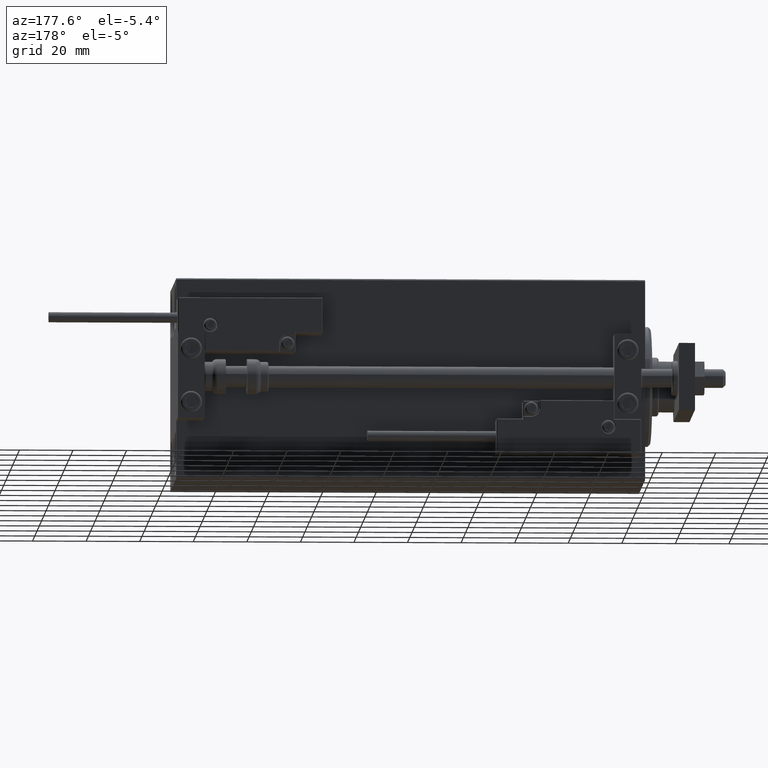
[diagram: clean part render]
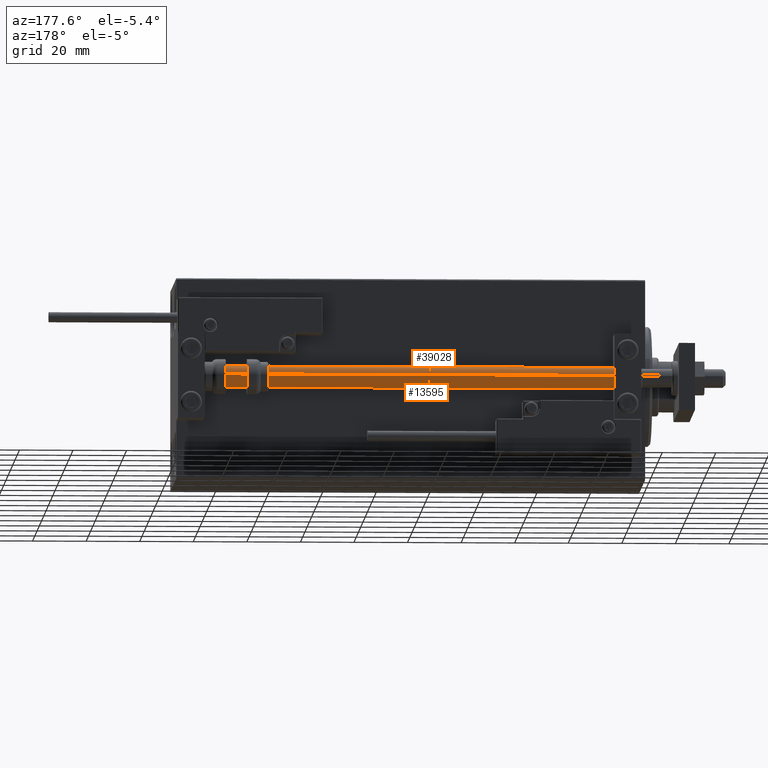
[diagram: same view with one multi-face feature highlighted, each face labeled with its STEP entity id]
A machine part, auxiliary view. The highlighted faces form ONE feature: a constant-radius fillet chain: 2 tangent blend faces with common blend radius 4 mm. The faces share edges in the B-rep.
Their STEP definitions:
[1] entity #13595 (Cylinder):
#1717 = DIRECTION ( 'NONE',  ( 0.000000000000000000, 0.000000000000000000, 1.000000000000000000 ) ) ;
#4536 = ORIENTED_EDGE ( 'NONE', *, *, #48330, .F. ) ;
#5455 = EDGE_CURVE ( 'NONE', #13848, #38849, #48937, .T. ) ;
#6234 = DIRECTION ( 'NONE',  ( 1.000000000000000000, 0.000000000000000000, 0.000000000000000000 ) ) ;
#8602 = EDGE_CURVE ( 'NONE', #21609, #17111, #28113, .T. ) ;
#8868 = DIRECTION ( 'NONE',  ( -0.000000000000000000, -0.000000000000000000, -1.000000000000000000 ) ) ;
#9295 = FACE_OUTER_BOUND ( 'NONE', #30283, .T. ) ;
#10665 = LINE ( 'NONE', #26069, #19185 ) ;
#11835 = AXIS2_PLACEMENT_3D ( 'NONE', #43419, #24988, #40378 ) ;
#13595 = ADVANCED_FACE ( 'NONE', ( #9295 ), #47424, .T. ) ;
#13848 = VERTEX_POINT ( 'NONE', #19851 ) ;
#17111 = VERTEX_POINT ( 'NONE', #32867 ) ;
#17118 = DIRECTION ( 'NONE',  ( -1.000000000000000000, 0.000000000000000000, 0.000000000000000000 ) ) ;
#18448 = ORIENTED_EDGE ( 'NONE', *, *, #5455, .T. ) ;
#18938 = VECTOR ( 'NONE', #8868, 1000.000000000000000 ) ;
#19185 = VECTOR ( 'NONE', #22286, 1000.000000000000000 ) ;
#19851 = CARTESIAN_POINT ( 'NONE',  ( -4.000000000000000000, 0.000000000000000000, 2.000000000000029310 ) ) ;
#20635 = CARTESIAN_POINT ( 'NONE',  ( 0.000000000000000000, 0.000000000000000000, 175.0000000000000000 ) ) ;
#21298 = CARTESIAN_POINT ( 'NONE',  ( -4.000000000000000000, 0.000000000000000000, 175.0000000000000000 ) ) ;
#21609 = VERTEX_POINT ( 'NONE', #21298 ) ;
#22286 = DIRECTION ( 'NONE',  ( -0.000000000000000000, -0.000000000000000000, -1.000000000000000000 ) ) ;
#23771 = LINE ( 'NONE', #27808, #18938 ) ;
#24106 = AXIS2_PLACEMENT_3D ( 'NONE', #40091, #43634, #17118 ) ;
#24988 = DIRECTION ( 'NONE',  ( -0.000000000000000000, -0.000000000000000000, 1.000000000000000000 ) ) ;
#26069 = CARTESIAN_POINT ( 'NONE',  ( -4.000000000000000000, 0.000000000000000000, 175.0000000000000000 ) ) ;
#27808 = CARTESIAN_POINT ( 'NONE',  ( 4.000000000000000000, 4.898587196589412829E-16, 175.0000000000000000 ) ) ;
#28113 = CIRCLE ( 'NONE', #33733, 4.000000000000000000 ) ;
#30283 = EDGE_LOOP ( 'NONE', ( #4536, #45084, #47680, #18448 ) ) ;
#31360 = EDGE_CURVE ( 'NONE', #21609, #13848, #10665, .T. ) ;
#32867 = CARTESIAN_POINT ( 'NONE',  ( 4.000000000000000000, 4.898587196589412829E-16, 175.0000000000000000 ) ) ;
#33733 = AXIS2_PLACEMENT_3D ( 'NONE', #20635, #1717, #6234 ) ;
#38849 = VERTEX_POINT ( 'NONE', #39352 ) ;
#39352 = CARTESIAN_POINT ( 'NONE',  ( 4.000000000000000000, 4.898587196589412829E-16, 2.000000000000029310 ) ) ;
#40091 = CARTESIAN_POINT ( 'NONE',  ( 0.000000000000000000, 0.000000000000000000, 175.0000000000000000 ) ) ;
#40378 = DIRECTION ( 'NONE',  ( 1.000000000000000000, 0.000000000000000000, 0.000000000000000000 ) ) ;
#43419 = CARTESIAN_POINT ( 'NONE',  ( 0.000000000000000000, 0.000000000000000000, 2.000000000000029310 ) ) ;
#43634 = DIRECTION ( 'NONE',  ( -0.000000000000000000, -0.000000000000000000, -1.000000000000000000 ) ) ;
#45084 = ORIENTED_EDGE ( 'NONE', *, *, #8602, .F. ) ;
#47424 = CYLINDRICAL_SURFACE ( 'NONE', #24106, 4.000000000000000000 ) ;
#47680 = ORIENTED_EDGE ( 'NONE', *, *, #31360, .T. ) ;
#48330 = EDGE_CURVE ( 'NONE', #17111, #38849, #23771, .T. ) ;
#48937 = CIRCLE ( 'NONE', #11835, 4.000000000000000000 ) ;
[2] entity #39028 (Cylinder):
#2231 = CYLINDRICAL_SURFACE ( 'NONE', #41915, 4.000000000000000000 ) ;
#3490 = EDGE_LOOP ( 'NONE', ( #32313, #5136, #7144, #17963 ) ) ;
#5136 = ORIENTED_EDGE ( 'NONE', *, *, #48330, .T. ) ;
#7009 = DIRECTION ( 'NONE',  ( 0.000000000000000000, 0.000000000000000000, 1.000000000000000000 ) ) ;
#7144 = ORIENTED_EDGE ( 'NONE', *, *, #45430, .T. ) ;
#8868 = DIRECTION ( 'NONE',  ( -0.000000000000000000, -0.000000000000000000, -1.000000000000000000 ) ) ;
#10665 = LINE ( 'NONE', #26069, #19185 ) ;
#13059 = EDGE_CURVE ( 'NONE', #17111, #21609, #28943, .T. ) ;
#13848 = VERTEX_POINT ( 'NONE', #19851 ) ;
#15502 = AXIS2_PLACEMENT_3D ( 'NONE', #19455, #18267, #46217 ) ;
#17111 = VERTEX_POINT ( 'NONE', #32867 ) ;
#17963 = ORIENTED_EDGE ( 'NONE', *, *, #31360, .F. ) ;
#18267 = DIRECTION ( 'NONE',  ( -0.000000000000000000, -0.000000000000000000, 1.000000000000000000 ) ) ;
#18623 = CARTESIAN_POINT ( 'NONE',  ( 0.000000000000000000, 0.000000000000000000, 175.0000000000000000 ) ) ;
#18938 = VECTOR ( 'NONE', #8868, 1000.000000000000000 ) ;
#19185 = VECTOR ( 'NONE', #22286, 1000.000000000000000 ) ;
#19455 = CARTESIAN_POINT ( 'NONE',  ( 0.000000000000000000, 0.000000000000000000, 2.000000000000029310 ) ) ;
#19851 = CARTESIAN_POINT ( 'NONE',  ( -4.000000000000000000, 0.000000000000000000, 2.000000000000029310 ) ) ;
#20069 = AXIS2_PLACEMENT_3D ( 'NONE', #18623, #7009, #45887 ) ;
#21298 = CARTESIAN_POINT ( 'NONE',  ( -4.000000000000000000, 0.000000000000000000, 175.0000000000000000 ) ) ;
#21609 = VERTEX_POINT ( 'NONE', #21298 ) ;
#22286 = DIRECTION ( 'NONE',  ( -0.000000000000000000, -0.000000000000000000, -1.000000000000000000 ) ) ;
#23771 = LINE ( 'NONE', #27808, #18938 ) ;
#26010 = CIRCLE ( 'NONE', #15502, 4.000000000000000000 ) ;
#26069 = CARTESIAN_POINT ( 'NONE',  ( -4.000000000000000000, 0.000000000000000000, 175.0000000000000000 ) ) ;
#27808 = CARTESIAN_POINT ( 'NONE',  ( 4.000000000000000000, 4.898587196589412829E-16, 175.0000000000000000 ) ) ;
#28746 = CARTESIAN_POINT ( 'NONE',  ( 0.000000000000000000, 0.000000000000000000, 175.0000000000000000 ) ) ;
#28943 = CIRCLE ( 'NONE', #20069, 4.000000000000000000 ) ;
#29253 = DIRECTION ( 'NONE',  ( -0.000000000000000000, -0.000000000000000000, -1.000000000000000000 ) ) ;
#31360 = EDGE_CURVE ( 'NONE', #21609, #13848, #10665, .T. ) ;
#32313 = ORIENTED_EDGE ( 'NONE', *, *, #13059, .F. ) ;
#32867 = CARTESIAN_POINT ( 'NONE',  ( 4.000000000000000000, 4.898587196589412829E-16, 175.0000000000000000 ) ) ;
#38849 = VERTEX_POINT ( 'NONE', #39352 ) ;
#39028 = ADVANCED_FACE ( 'NONE', ( #40848 ), #2231, .T. ) ;
#39352 = CARTESIAN_POINT ( 'NONE',  ( 4.000000000000000000, 4.898587196589412829E-16, 2.000000000000029310 ) ) ;
#40848 = FACE_OUTER_BOUND ( 'NONE', #3490, .T. ) ;
#41915 = AXIS2_PLACEMENT_3D ( 'NONE', #28746, #29253, #48179 ) ;
#45430 = EDGE_CURVE ( 'NONE', #38849, #13848, #26010, .T. ) ;
#45887 = DIRECTION ( 'NONE',  ( 1.000000000000000000, 0.000000000000000000, 0.000000000000000000 ) ) ;
#46217 = DIRECTION ( 'NONE',  ( 1.000000000000000000, 0.000000000000000000, 0.000000000000000000 ) ) ;
#48179 = DIRECTION ( 'NONE',  ( -1.000000000000000000, 0.000000000000000000, 0.000000000000000000 ) ) ;
#48330 = EDGE_CURVE ( 'NONE', #17111, #38849, #23771, .T. ) ;